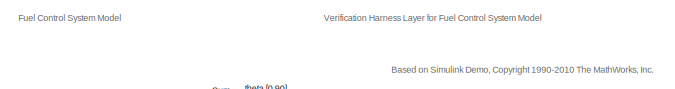
[diagram: root canvas - part 1/8, top center region]
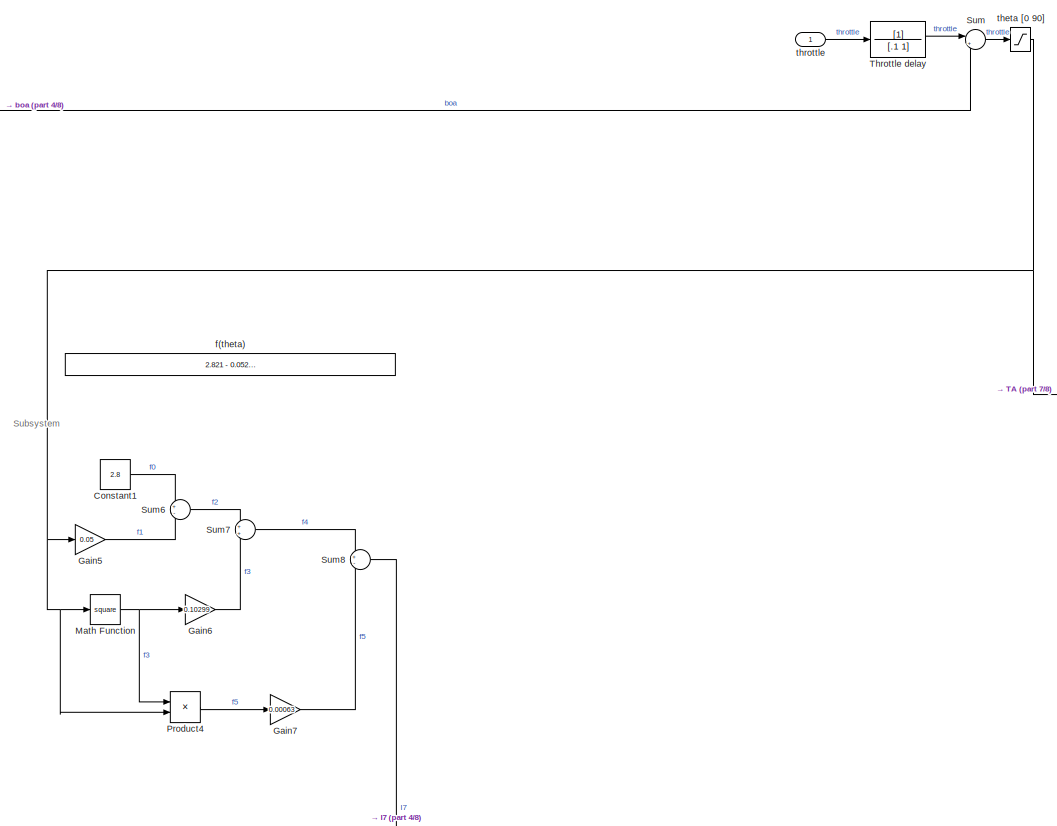
[diagram: root canvas - part 2/8, top left region]
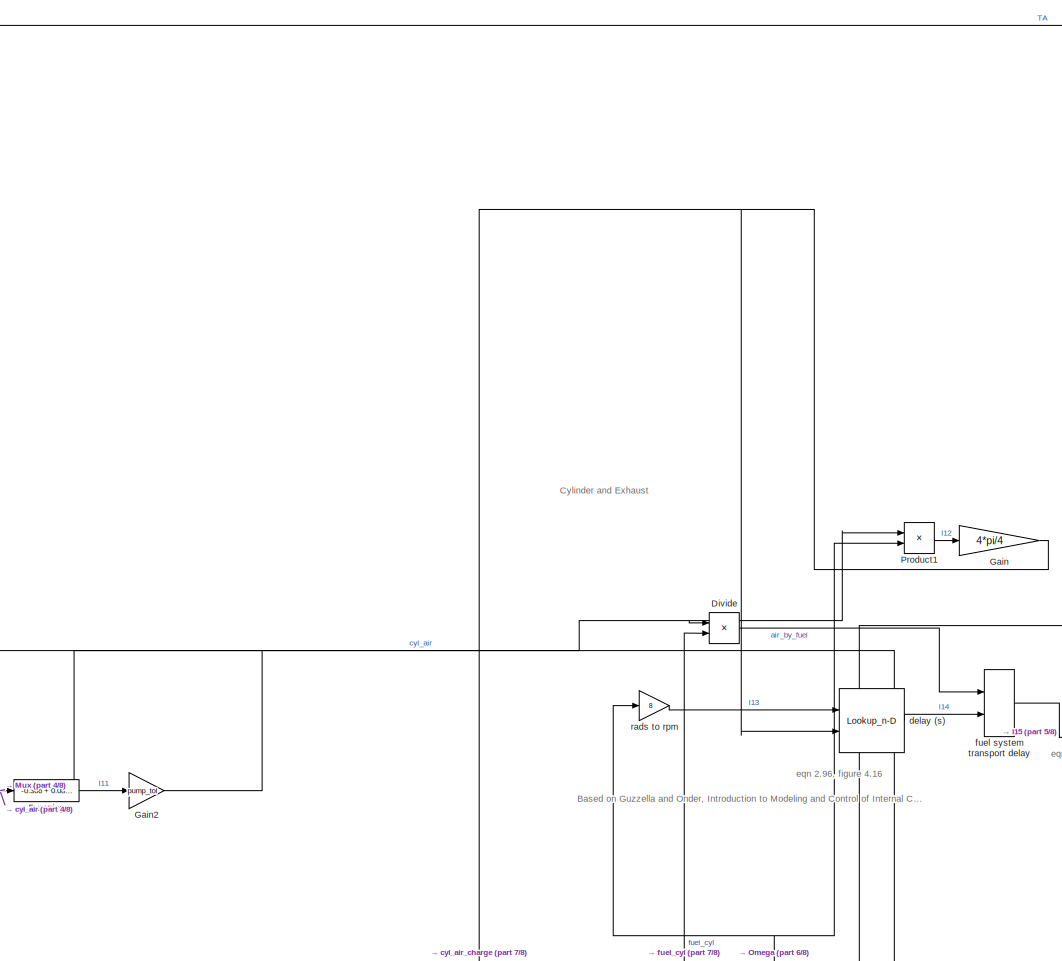
[diagram: root canvas - part 3/8, top center region]
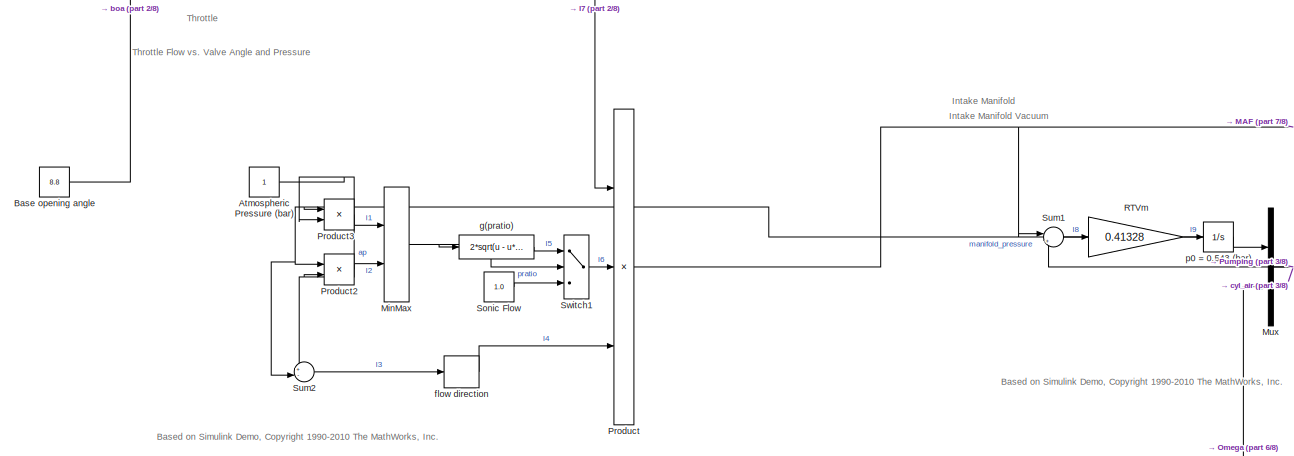
[diagram: root canvas - part 4/8, middle left region]
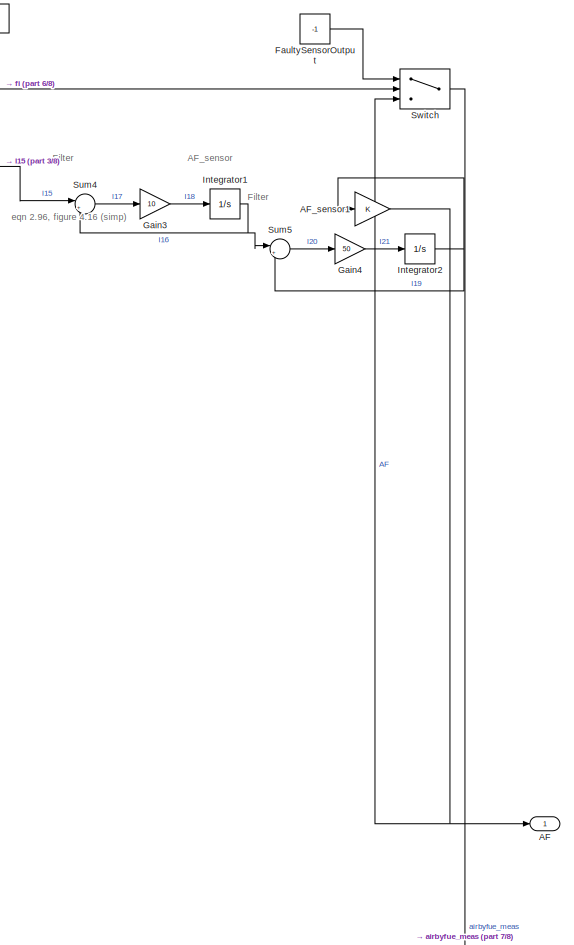
[diagram: root canvas - part 5/8, middle right region]
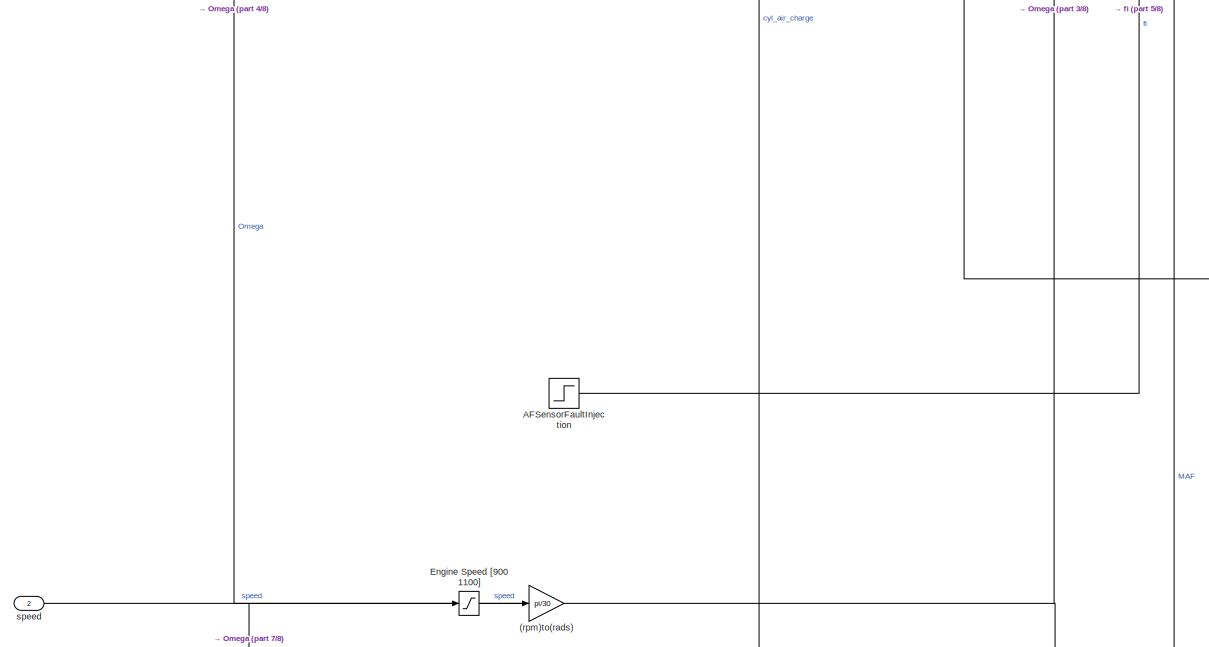
[diagram: root canvas - part 6/8, central region]
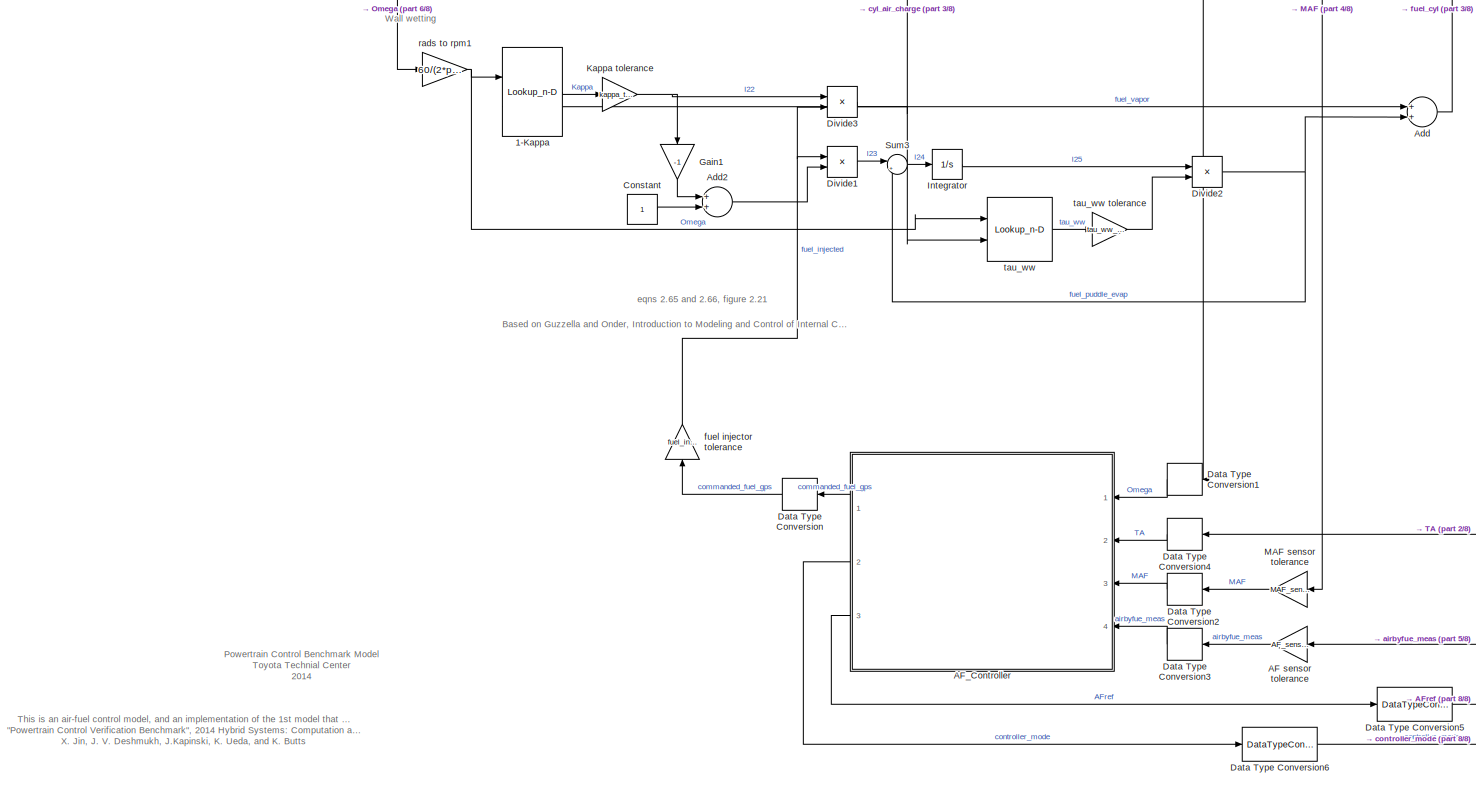
[diagram: root canvas - part 7/8, bottom center region]
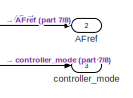
[diagram: root canvas - part 8/8, bottom right region]
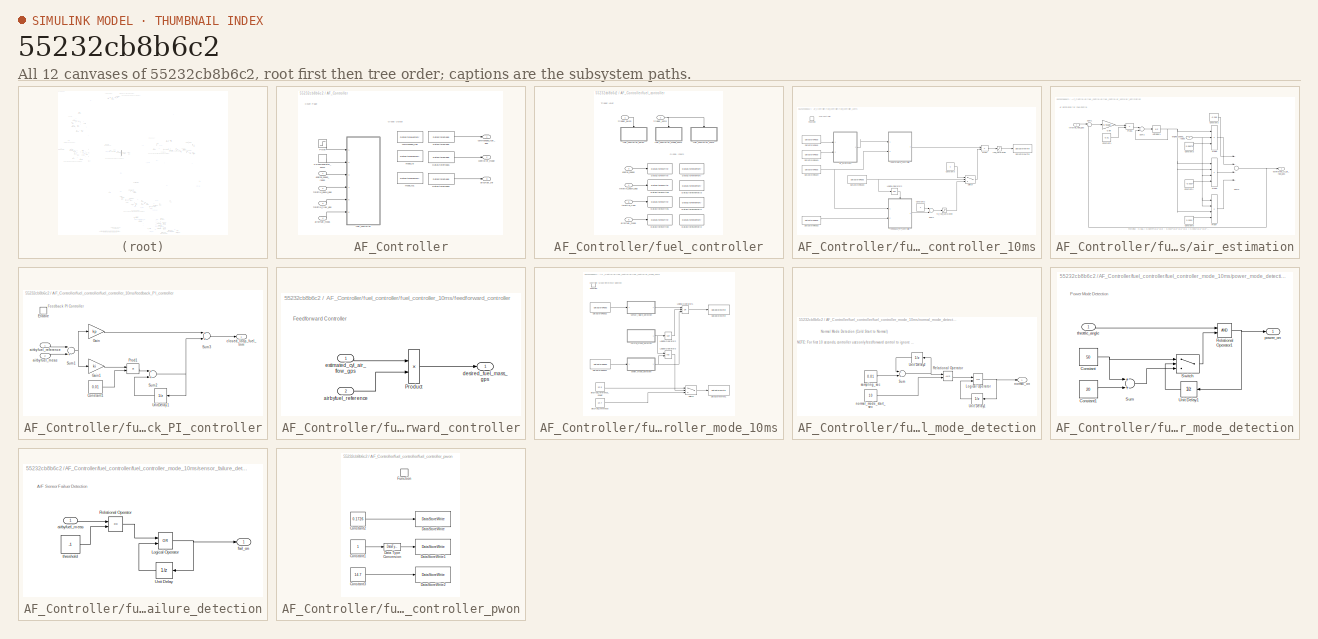
[diagram: thumbnail index - all 12 canvases of the model, root first then tree order]
MODEL slx_55232cb8b6c2
KIND model
CONFIG AbsTol = auto
CONFIG EnableMultiTasking = off
CONFIG FixedStep = auto
CONFIG MaxStep = .01
CONFIG MinStep = auto
CONFIG RelTol = 1e-3
CONFIG SampleTimeConstraint = Unconstrained
CONFIG Solver = ode15s
CONFIG SolverName = ode15s
CONFIG StartTime = 0.0
CONFIG StopTime = tspan(end)
WORKSPACE source: external: MAT-File  (data not in archive)
BLOCK [Gain] (rpm)to(rads)
  Gain = pi/30
  OutDataTypeStr = Inherit: Inherit via internal rule
  ParamDataTypeStr = Inherit: Inherit via internal rule
  SaturateOnIntegerOverflow = off
BLOCK [Lookup_n-D] 1-Kappa
  BreakpointsForDimension1 = [1000,1500,2000,2500,3000]
  BreakpointsForDimension2 = [.1,.2,.3,.4]
  DiagnosticForOutOfRangeInput = Warning
  Ports = [2, 1]
  RndMeth = Simplest
  Table = reshape([0.8,.7,.7,.8,.9,.7,.66,.65,.73,.85,.66,.66,.63,.66,.8,.6,.6,.6,.6,.7],5,4)
  UseLastTableValue = on
BLOCK [Outport] AF
  IconDisplay = Port number
BLOCK [Gain] AF sensor tolerance
  Gain = AF_sensor_tol
  OutDataTypeStr = Inherit: Inherit via internal rule
  ParamDataTypeStr = Inherit: Inherit via internal rule
  SaturateOnIntegerOverflow = off
BLOCK [Step] AFSensorFaultInjection
  AttributesFormatString = 1: Failure\n0: Normal
  SampleTime = 0
  Time = fault_time
BLOCK [SubSystem] AF_Controller
  Ports = [4, 3]
  RequestExecContextInheritance = off
  TreatAsAtomicUnit = on
  Variant = off
BLOCK [DataStoreRead] AF_Controller/DataStoreRead
  AttributesFormatString = Priority = %<Priority>
  DataStoreName = commanded_fuel
  Ports = [0, 1]
  Priority = 2
  SampleTime = 0.01
BLOCK [DataStoreRead] AF_Controller/DataStoreRead1
  AttributesFormatString = Priority = %<Priority>
  DataStoreName = controller_mode
  Ports = [0, 1]
  Priority = 2
  SampleTime = 0.01
BLOCK [DataStoreRead] AF_Controller/DataStoreRead2
  AttributesFormatString = Priority = %<Priority>
  DataStoreName = airbyfuel_ref
  Ports = [0, 1]
  Priority = 2
  SampleTime = 0.01
BLOCK [DiscretePulseGenerator] AF_Controller/PulseGenerator_10ms
  Period = 0.01
  PhaseDelay = 0.01
  Ports = [0, 1]
  PulseType = Time based
  PulseWidth = 50
BLOCK [Step] AF_Controller/Pwon
  SampleTime = 0
  Time = 0.001
BLOCK [Inport] AF_Controller/airbyfuel_meas
  IconDisplay = Port number
  Port = 4
  SamplingMode = Sample based
  SignalType = real
BLOCK [Outport] AF_Controller/airbyfuel_ref
  IconDisplay = Port number
  Port = 3
  SamplingMode = Sample based
  SignalType = real
BLOCK [DataStoreMemory] AF_Controller/commanded_fuel
  AttributesFormatString = commanded_fuel
  DataStoreName = commanded_fuel
  InitialValue = 0.1726
  OutDataTypeStr = single
  ShowAdditionalParam = off
  SignalType = real
BLOCK [Outport] AF_Controller/commanded_fuel_gps
  IconDisplay = Port number
  SamplingMode = Sample based
  SignalType = real
BLOCK [Outport] AF_Controller/controller_mode
  IconDisplay = Port number
  Port = 2
  SamplingMode = Sample based
  SignalType = real
BLOCK [Inport] AF_Controller/engine_speed_radps
  IconDisplay = Port number
  SamplingMode = Sample based
  SignalType = real
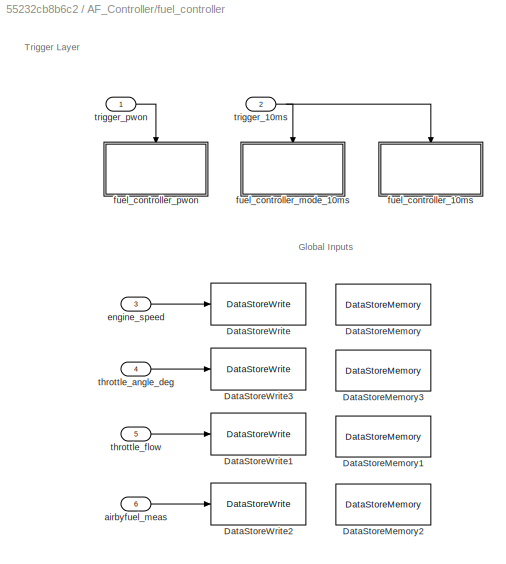
BLOCK [SubSystem] AF_Controller/fuel_controller
  AttributesFormatString = Priority = %<Priority>
  Ports = [6]
  Priority = 1
  RequestExecContextInheritance = off
  TreatAsAtomicUnit = on
  Variant = off
BLOCK [DataStoreMemory] AF_Controller/fuel_controller/DataStoreMemory
  AttributesFormatString = engine speed
  DataStoreName = engine_speed
  OutDataTypeStr = single
  ShowAdditionalParam = off
  SignalType = real
BLOCK [DataStoreMemory] AF_Controller/fuel_controller/DataStoreMemory1
  AttributesFormatString = throttle flow
  DataStoreName = throttle_flow
  OutDataTypeStr = single
  ShowAdditionalParam = off
  SignalType = real
BLOCK [DataStoreMemory] AF_Controller/fuel_controller/DataStoreMemory2
  AttributesFormatString = lambda_meas
  DataStoreName = airbyfuel_meas
  OutDataTypeStr = single
  ShowAdditionalParam = off
  SignalType = real
BLOCK [DataStoreMemory] AF_Controller/fuel_controller/DataStoreMemory3
  AttributesFormatString = throttle flow
  DataStoreName = throttle_angle
  OutDataTypeStr = single
  ShowAdditionalParam = off
  SignalType = real
BLOCK [DataStoreWrite] AF_Controller/fuel_controller/DataStoreWrite
  AttributesFormatString = Priority = %<Priority>
  DataStoreName = engine_speed
  Ports = [1]
  Priority = 1
BLOCK [DataStoreWrite] AF_Controller/fuel_controller/DataStoreWrite1
  AttributesFormatString = Priority = %<Priority>
  DataStoreName = throttle_flow
  Ports = [1]
  Priority = 1
BLOCK [DataStoreWrite] AF_Controller/fuel_controller/DataStoreWrite2
  AttributesFormatString = Priority = %<Priority>
  DataStoreName = airbyfuel_meas
  Ports = [1]
  Priority = 1
BLOCK [DataStoreWrite] AF_Controller/fuel_controller/DataStoreWrite3
  AttributesFormatString = Priority = %<Priority>
  DataStoreName = throttle_angle
  Ports = [1]
  Priority = 1
BLOCK [Inport] AF_Controller/fuel_controller/airbyfuel_meas
  IconDisplay = Port number
  Port = 6
  SamplingMode = Sample based
  SignalType = real
BLOCK [Inport] AF_Controller/fuel_controller/engine_speed
  IconDisplay = Port number
  Port = 3
  SamplingMode = Sample based
  SignalType = real
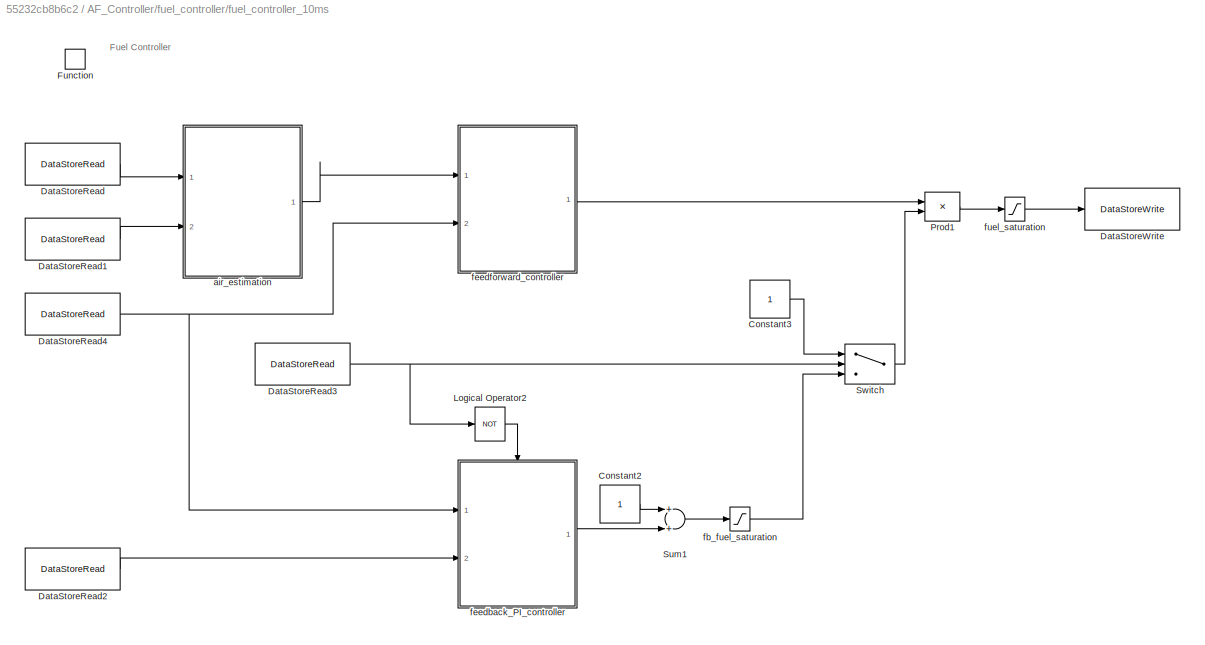
BLOCK [SubSystem] AF_Controller/fuel_controller/fuel_controller_10ms
  AttributesFormatString = Priority = %<Priority>
  Ports = [0, 0, 0, 1]
  Priority = 30
  RequestExecContextInheritance = off
  TreatAsAtomicUnit = on
  Variant = off
BLOCK [Constant] AF_Controller/fuel_controller/fuel_controller_10ms/Constant2
  OutDataTypeStr = single
BLOCK [Constant] AF_Controller/fuel_controller/fuel_controller_10ms/Constant3
  OutDataTypeStr = single
BLOCK [DataStoreRead] AF_Controller/fuel_controller/fuel_controller_10ms/DataStoreRead
  DataStoreName = throttle_flow
  Ports = [0, 1]
BLOCK [DataStoreRead] AF_Controller/fuel_controller/fuel_controller_10ms/DataStoreRead1
  DataStoreName = engine_speed
  Ports = [0, 1]
BLOCK [DataStoreRead] AF_Controller/fuel_controller/fuel_controller_10ms/DataStoreRead2
  DataStoreName = airbyfuel_meas
  Ports = [0, 1]
BLOCK [DataStoreRead] AF_Controller/fuel_controller/fuel_controller_10ms/DataStoreRead3
  AttributesFormatString = 1: Feedforward\n0: Feedforward + Feedback
  DataStoreName = controller_mode
  Ports = [0, 1]
BLOCK [DataStoreRead] AF_Controller/fuel_controller/fuel_controller_10ms/DataStoreRead4
  DataStoreName = airbyfuel_ref
  Ports = [0, 1]
BLOCK [DataStoreWrite] AF_Controller/fuel_controller/fuel_controller_10ms/DataStoreWrite
  DataStoreName = commanded_fuel
  Ports = [1]
BLOCK [TriggerPort] AF_Controller/fuel_controller/fuel_controller_10ms/Function
  Ports = []
  StatesWhenEnabling = held
  VariantControl = Variant
BLOCK [Logic] AF_Controller/fuel_controller/fuel_controller_10ms/Logical Operator2
  AllPortsSameDT = off
  Operator = NOT
  OutDataTypeStr = boolean
  Ports = [1, 1]
BLOCK [Product] AF_Controller/fuel_controller/fuel_controller_10ms/Prod1
  InputSameDT = off
  OutDataTypeStr = Inherit: Inherit via back propagation
  Ports = [2, 1]
  RndMeth = Simplest
  SaturateOnIntegerOverflow = off
BLOCK [Sum] AF_Controller/fuel_controller/fuel_controller_10ms/Sum1
  OutDataTypeStr = Inherit: Inherit via back propagation
  Ports = [2, 1]
  RndMeth = Simplest
  SaturateOnIntegerOverflow = off
BLOCK [Switch] AF_Controller/fuel_controller/fuel_controller_10ms/Switch
  Criteria = u2 ~= 0
  InputSameDT = off
  SaturateOnIntegerOverflow = off
  Threshold = 0.5
BLOCK [SubSystem] AF_Controller/fuel_controller/fuel_controller_10ms/air_estimation
  Ports = [2, 1]
  RequestExecContextInheritance = off
  TreatAsAtomicUnit = on
  Variant = off
BLOCK [Constant] AF_Controller/fuel_controller/fuel_controller_10ms/air_estimation/Constant1
  AttributesFormatString = Sample Time (s)
  OutDataTypeStr = single
  SampleTime = -1
  UserDataPersistent = on
  Value = 0.01
BLOCK [Constant] AF_Controller/fuel_controller/fuel_controller_10ms/air_estimation/Constant2
  OutDataTypeStr = single
  SampleTime = -1
  UserDataPersistent = on
  Value = -0.366
BLOCK [Constant] AF_Controller/fuel_controller/fuel_controller_10ms/air_estimation/Constant3
  OutDataTypeStr = single
  SampleTime = -1
  UserDataPersistent = on
  Value = 0.08979
BLOCK [Constant] AF_Controller/fuel_controller/fuel_controller_10ms/air_estimation/Constant4
  OutDataTypeStr = single
  SampleTime = -1
  UserDataPersistent = on
  Value = -0.0337
BLOCK [Constant] AF_Controller/fuel_controller/fuel_controller_10ms/air_estimation/Constant5
  OutDataTypeStr = single
  SampleTime = -1
  UserDataPersistent = on
  Value = 0.0001
BLOCK [Gain] AF_Controller/fuel_controller/fuel_controller_10ms/air_estimation/Gain
  AttributesFormatString = RT/Vm
  Gain = 0.41328
  OutDataTypeStr = Inherit: Inherit via back propagation
  ParamDataTypeStr = single
  RndMeth = Simplest
  UserDataPersistent = on
BLOCK [Product] AF_Controller/fuel_controller/fuel_controller_10ms/air_estimation/Prod1
  InputSameDT = off
  OutDataTypeStr = Inherit: Inherit via back propagation
  Ports = [2, 1]
  RndMeth = Simplest
  SaturateOnIntegerOverflow = off
BLOCK [Product] AF_Controller/fuel_controller/fuel_controller_10ms/air_estimation/Prod2
  InputSameDT = off
  Inputs = 3
  OutDataTypeStr = Inherit: Inherit via back propagation
  Ports = [3, 1]
  RndMeth = Simplest
  SaturateOnIntegerOverflow = off
BLOCK [Product] AF_Controller/fuel_controller/fuel_controller_10ms/air_estimation/Prod3
  InputSameDT = off
  Inputs = 4
  OutDataTypeStr = Inherit: Inherit via back propagation
  Ports = [4, 1]
  RndMeth = Simplest
  SaturateOnIntegerOverflow = off
BLOCK [Product] AF_Controller/fuel_controller/fuel_controller_10ms/air_estimation/Prod4
  InputSameDT = off
  Inputs = 4
  OutDataTypeStr = Inherit: Inherit via back propagation
  Ports = [4, 1]
  RndMeth = Simplest
  SaturateOnIntegerOverflow = off
BLOCK [Sum] AF_Controller/fuel_controller/fuel_controller_10ms/air_estimation/Sum1
  IconShape = round
  Inputs = |+-
  OutDataTypeStr = Inherit: Inherit via back propagation
  Ports = [2, 1]
  RndMeth = Simplest
  SaturateOnIntegerOverflow = off
BLOCK [Sum] AF_Controller/fuel_controller/fuel_controller_10ms/air_estimation/Sum2
  OutDataTypeStr = Inherit: Inherit via back propagation
  Ports = [2, 1]
  RndMeth = Simplest
  SaturateOnIntegerOverflow = off
BLOCK [Sum] AF_Controller/fuel_controller/fuel_controller_10ms/air_estimation/Sum3
  Inputs = ++++
  OutDataTypeStr = Inherit: Inherit via back propagation
  Ports = [4, 1]
  RndMeth = Simplest
  SaturateOnIntegerOverflow = off
BLOCK [UnitDelay] AF_Controller/fuel_controller/fuel_controller_10ms/air_estimation/UnitDelay1
  AttributesFormatString = p0 = %<InitialCondition> (bar)
  InitialCondition = 0.982
  SampleTime = -1
  UserDataPersistent = on
BLOCK [Inport] AF_Controller/fuel_controller/fuel_controller_10ms/air_estimation/engine_speed_radps
  IconDisplay = Port number
  Port = 2
  SamplingMode = Sample based
  SignalType = real
BLOCK [Outport] AF_Controller/fuel_controller/fuel_controller_10ms/air_estimation/estimated_cyl_air_flow_gps
  IconDisplay = Port number
  SamplingMode = Sample based
  SignalType = real
BLOCK [Inport] AF_Controller/fuel_controller/fuel_controller_10ms/air_estimation/throttle_flow_gps
  IconDisplay = Port number
  SamplingMode = Sample based
  SignalType = real
BLOCK [Saturate] AF_Controller/fuel_controller/fuel_controller_10ms/fb_fuel_saturation
  AttributesFormatString = y >= 0
  InputPortMap = u0
  LowerLimit = 0
  Ports = [1, 1]
  RndMeth = Round
  UpperLimit = inf
BLOCK [SubSystem] AF_Controller/fuel_controller/fuel_controller_10ms/feedback_PI_controller
  Ports = [2, 1, 1]
  RequestExecContextInheritance = off
  TreatAsAtomicUnit = on
  Variant = off
BLOCK [Constant] AF_Controller/fuel_controller/fuel_controller_10ms/feedback_PI_controller/Constant1
  AttributesFormatString = Sample Time [s]
  OutDataTypeStr = single
  SampleTime = -1
  UserDataPersistent = on
  Value = 0.01
BLOCK [EnablePort] AF_Controller/fuel_controller/fuel_controller_10ms/feedback_PI_controller/Enable
  Ports = []
BLOCK [Gain] AF_Controller/fuel_controller/fuel_controller_10ms/feedback_PI_controller/Gain
  AttributesFormatString = Proportional Gain
  Gain = kp
  OutDataTypeStr = Inherit: Inherit via back propagation
  ParamDataTypeStr = single
  RndMeth = Simplest
  UserDataPersistent = on
BLOCK [Gain] AF_Controller/fuel_controller/fuel_controller_10ms/feedback_PI_controller/Gain1
  AttributesFormatString = Integral Gain
  Gain = ki
  OutDataTypeStr = Inherit: Inherit via back propagation
  ParamDataTypeStr = single
  RndMeth = Simplest
  UserDataPersistent = on
BLOCK [Product] AF_Controller/fuel_controller/fuel_controller_10ms/feedback_PI_controller/Prod1
  InputSameDT = off
  OutDataTypeStr = Inherit: Inherit via back propagation
  Ports = [2, 1]
  RndMeth = Simplest
  SaturateOnIntegerOverflow = off
BLOCK [Sum] AF_Controller/fuel_controller/fuel_controller_10ms/feedback_PI_controller/Sum1
  Inputs = -+
  OutDataTypeStr = Inherit: Inherit via back propagation
  Ports = [2, 1]
  RndMeth = Simplest
  SaturateOnIntegerOverflow = off
BLOCK [Sum] AF_Controller/fuel_controller/fuel_controller_10ms/feedback_PI_controller/Sum2
  OutDataTypeStr = Inherit: Inherit via back propagation
  Ports = [2, 1]
  RndMeth = Simplest
  SaturateOnIntegerOverflow = off
BLOCK [Sum] AF_Controller/fuel_controller/fuel_controller_10ms/feedback_PI_controller/Sum3
  OutDataTypeStr = Inherit: Inherit via back propagation
  Ports = [2, 1]
  RndMeth = Simplest
  SaturateOnIntegerOverflow = off
BLOCK [UnitDelay] AF_Controller/fuel_controller/fuel_controller_10ms/feedback_PI_controller/UnitDelay1
  AttributesFormatString = Initial Value = 0
  SampleTime = -1
  UserDataPersistent = on
BLOCK [Inport] AF_Controller/fuel_controller/fuel_controller_10ms/feedback_PI_controller/airbyfuel_meas
  IconDisplay = Port number
  Port = 2
  SamplingMode = Sample based
  SignalType = real
BLOCK [Inport] AF_Controller/fuel_controller/fuel_controller_10ms/feedback_PI_controller/airbyfuel_reference
  IconDisplay = Port number
  SamplingMode = Sample based
  SignalType = real
BLOCK [Outport] AF_Controller/fuel_controller/fuel_controller_10ms/feedback_PI_controller/closed_loop_fuel_trim
  IconDisplay = Port number
  SamplingMode = Sample based
  SignalType = real
BLOCK [SubSystem] AF_Controller/fuel_controller/fuel_controller_10ms/feedforward_controller
  Ports = [2, 1]
  RequestExecContextInheritance = off
  TreatAsAtomicUnit = on
  Variant = off
BLOCK [Product] AF_Controller/fuel_controller/fuel_controller_10ms/feedforward_controller/Product
  InputSameDT = off
  Inputs = */
  Ports = [2, 1]
  RndMeth = Simplest
BLOCK [Inport] AF_Controller/fuel_controller/fuel_controller_10ms/feedforward_controller/airbyfuel_reference
  IconDisplay = Port number
  Port = 2
  SamplingMode = Sample based
  SignalType = real
BLOCK [Outport] AF_Controller/fuel_controller/fuel_controller_10ms/feedforward_controller/desired_fuel_mass_gps
  IconDisplay = Port number
  SamplingMode = Sample based
  SignalType = real
BLOCK [Inport] AF_Controller/fuel_controller/fuel_controller_10ms/feedforward_controller/estimated_cyl_air_flow_gps
  IconDisplay = Port number
  SamplingMode = Sample based
  SignalType = real
BLOCK [Saturate] AF_Controller/fuel_controller/fuel_controller_10ms/fuel_saturation
  AttributesFormatString = 0.13 <=\ncommanded_fuel\n<= 1.66
  InputPortMap = u0
  LowerLimit = 0.13
  Ports = [1, 1]
  RndMeth = Round
  UpperLimit = 1.66
BLOCK [SubSystem] AF_Controller/fuel_controller/fuel_controller_mode_10ms
  AttributesFormatString = Priority = %<Priority>
  Ports = [0, 0, 0, 1]
  Priority = 20
  RequestExecContextInheritance = off
  TreatAsAtomicUnit = on
  Variant = off
BLOCK [DataStoreRead] AF_Controller/fuel_controller/fuel_controller_mode_10ms/DataStoreRead2
  DataStoreName = airbyfuel_meas
  Ports = [0, 1]
BLOCK [DataStoreRead] AF_Controller/fuel_controller/fuel_controller_mode_10ms/DataStoreRead4
  DataStoreName = throttle_angle
  Ports = [0, 1]
BLOCK [DataStoreWrite] AF_Controller/fuel_controller/fuel_controller_mode_10ms/DataStoreWrite
  AttributesFormatString = 1: Feedforward\n0: Feedforward + Feedback
  DataStoreName = controller_mode
  Ports = [1]
BLOCK [DataStoreWrite] AF_Controller/fuel_controller/fuel_controller_mode_10ms/DataStoreWrite1
  DataStoreName = airbyfuel_ref
  Ports = [1]
BLOCK [TriggerPort] AF_Controller/fuel_controller/fuel_controller_mode_10ms/Function
  Ports = []
  StatesWhenEnabling = held
  VariantControl = Variant
BLOCK [Logic] AF_Controller/fuel_controller/fuel_controller_mode_10ms/Logical Operator1
  AllPortsSameDT = off
  Inputs = 3
  Operator = OR
  OutDataTypeStr = boolean
  Ports = [3, 1]
BLOCK [Logic] AF_Controller/fuel_controller/fuel_controller_mode_10ms/Logical Operator2
  AllPortsSameDT = off
  Operator = NOT
  OutDataTypeStr = boolean
  Ports = [1, 1]
BLOCK [Logic] AF_Controller/fuel_controller/fuel_controller_mode_10ms/Logical Operator3
  AllPortsSameDT = off
  OutDataTypeStr = boolean
  Ports = [2, 1]
BLOCK [Switch] AF_Controller/fuel_controller/fuel_controller_mode_10ms/Switch
  Criteria = u2 ~= 0
  InputSameDT = off
  SaturateOnIntegerOverflow = off
BLOCK [Constant] AF_Controller/fuel_controller/fuel_controller_mode_10ms/airbyfuel_reference
  OutDataTypeStr = single
  SampleTime = -1
  UserDataPersistent = on
  Value = 14.7
BLOCK [Constant] AF_Controller/fuel_controller/fuel_controller_mode_10ms/airbyfuel_reference_power
  OutDataTypeStr = single
  SampleTime = -1
  UserDataPersistent = on
  Value = 12.5
BLOCK [SubSystem] AF_Controller/fuel_controller/fuel_controller_mode_10ms/normal_mode_detection
  AttributesFormatString = 0: Feedforward\n1: Feedforward + Feedback
  Ports = [0, 1]
  RequestExecContextInheritance = off
  TreatAsAtomicUnit = on
  Variant = off
BLOCK [Logic] AF_Controller/fuel_controller/fuel_controller_mode_10ms/normal_mode_detection/Logical Operator
  Operator = OR
  OutDataTypeStr = boolean
  Ports = [2, 1]
BLOCK [RelationalOperator] AF_Controller/fuel_controller/fuel_controller_mode_10ms/normal_mode_detection/Relational Operator
  InputSameDT = off
  OutDataTypeStr = boolean
  Ports = [2, 1]
BLOCK [Sum] AF_Controller/fuel_controller/fuel_controller_mode_10ms/normal_mode_detection/Sum
  InputSameDT = off
  OutDataTypeStr = Inherit: Inherit via internal rule
  Ports = [2, 1]
  SaturateOnIntegerOverflow = off
BLOCK [UnitDelay] AF_Controller/fuel_controller/fuel_controller_mode_10ms/normal_mode_detection/Unit Delay1
  AttributesFormatString = Initial Value = 0
  InputProcessing = Elements as channels (sample based)
  SampleTime = -1
BLOCK [UnitDelay] AF_Controller/fuel_controller/fuel_controller_mode_10ms/normal_mode_detection/Unit Delay2
  AttributesFormatString = Initial Value = 0
  InputProcessing = Elements as channels (sample based)
  SampleTime = -1
BLOCK [Constant] AF_Controller/fuel_controller/fuel_controller_mode_10ms/normal_mode_detection/normal_mode_start_sec
  AttributesFormatString = Normal Mode Start Time (s)
  OutDataTypeStr = single
  SampleTime = -1
  UserDataPersistent = on
  Value = 10
BLOCK [Outport] AF_Controller/fuel_controller/fuel_controller_mode_10ms/normal_mode_detection/normal_on
  IconDisplay = Port number
BLOCK [Constant] AF_Controller/fuel_controller/fuel_controller_mode_10ms/normal_mode_detection/sampling_sec
  AttributesFormatString = Sample Time (s)
  OutDataTypeStr = single
  SampleTime = -1
  UserDataPersistent = on
  Value = 0.01
BLOCK [SubSystem] AF_Controller/fuel_controller/fuel_controller_mode_10ms/power_mode_detection
  AttributesFormatString = 1: Feedforward\n0: Feedforward + Feedback
  Ports = [1, 1]
  RequestExecContextInheritance = off
  TreatAsAtomicUnit = on
  Variant = off
BLOCK [Constant] AF_Controller/fuel_controller/fuel_controller_mode_10ms/power_mode_detection/Constant
  AttributesFormatString = Base
  OutDataTypeStr = single
  Value = 50
BLOCK [Constant] AF_Controller/fuel_controller/fuel_controller_mode_10ms/power_mode_detection/Constant1
  AttributesFormatString = Hysteresis
  OutDataTypeStr = single
  Value = 20
BLOCK [RelationalOperator] AF_Controller/fuel_controller/fuel_controller_mode_10ms/power_mode_detection/Relational Operator1
  InputSameDT = off
  OutDataTypeStr = boolean
  Ports = [2, 1]
BLOCK [Sum] AF_Controller/fuel_controller/fuel_controller_mode_10ms/power_mode_detection/Sum
  InputSameDT = off
  OutDataTypeStr = Inherit: Inherit via internal rule
  Ports = [2, 1]
  SaturateOnIntegerOverflow = off
BLOCK [Switch] AF_Controller/fuel_controller/fuel_controller_mode_10ms/power_mode_detection/Switch
  Criteria = u2 ~= 0
  InputSameDT = off
  SaturateOnIntegerOverflow = off
BLOCK [UnitDelay] AF_Controller/fuel_controller/fuel_controller_mode_10ms/power_mode_detection/Unit Delay1
  AttributesFormatString = Initial Value = 0
  InputProcessing = Elements as channels (sample based)
  SampleTime = -1
BLOCK [Outport] AF_Controller/fuel_controller/fuel_controller_mode_10ms/power_mode_detection/power_on
  IconDisplay = Port number
BLOCK [Inport] AF_Controller/fuel_controller/fuel_controller_mode_10ms/power_mode_detection/throttle_angle
  IconDisplay = Port number
BLOCK [SubSystem] AF_Controller/fuel_controller/fuel_controller_mode_10ms/sensor_failure_detection
  AttributesFormatString = 1: Feedforward\n0: Feedforward + Feedback
  Ports = [1, 1]
  RequestExecContextInheritance = off
  TreatAsAtomicUnit = on
  Variant = off
BLOCK [Logic] AF_Controller/fuel_controller/fuel_controller_mode_10ms/sensor_failure_detection/Logical Operator
  Operator = OR
  OutDataTypeStr = boolean
  Ports = [2, 1]
BLOCK [RelationalOperator] AF_Controller/fuel_controller/fuel_controller_mode_10ms/sensor_failure_detection/Relational Operator
  InputSameDT = off
  Operator = <=
  OutDataTypeStr = boolean
  Ports = [2, 1]
BLOCK [UnitDelay] AF_Controller/fuel_controller/fuel_controller_mode_10ms/sensor_failure_detection/Unit Delay
  AttributesFormatString = Initial Value = 0
  InputProcessing = Elements as channels (sample based)
  SampleTime = -1
BLOCK [Inport] AF_Controller/fuel_controller/fuel_controller_mode_10ms/sensor_failure_detection/airbyfuel_meas
  IconDisplay = Port number
BLOCK [Outport] AF_Controller/fuel_controller/fuel_controller_mode_10ms/sensor_failure_detection/fail_on
  IconDisplay = Port number
BLOCK [Constant] AF_Controller/fuel_controller/fuel_controller_mode_10ms/sensor_failure_detection/threshold
  OutDataTypeStr = single
  Value = -1
BLOCK [SubSystem] AF_Controller/fuel_controller/fuel_controller_pwon
  AttributesFormatString = Priority = %<Priority>
  Ports = [0, 0, 0, 1]
  Priority = 10
  RequestExecContextInheritance = off
  TreatAsAtomicUnit = on
  Variant = off
BLOCK [Constant] AF_Controller/fuel_controller/fuel_controller_pwon/Constant1
  OutDataTypeStr = single
  SampleTime = -1
  UserDataPersistent = on
BLOCK [Constant] AF_Controller/fuel_controller/fuel_controller_pwon/Constant2
  OutDataTypeStr = single
  SampleTime = -1
  UserDataPersistent = on
  Value = 0.1726
BLOCK [Constant] AF_Controller/fuel_controller/fuel_controller_pwon/Constant3
  OutDataTypeStr = single
  SampleTime = -1
  UserDataPersistent = on
  Value = 14.7
BLOCK [DataTypeConversion] AF_Controller/fuel_controller/fuel_controller_pwon/Data Type Conversion
  OutDataTypeStr = boolean
  RndMeth = Floor
  SaturateOnIntegerOverflow = off
BLOCK [DataStoreWrite] AF_Controller/fuel_controller/fuel_controller_pwon/DataStoreWrite
  DataStoreName = commanded_fuel
  Ports = [1]
BLOCK [DataStoreWrite] AF_Controller/fuel_controller/fuel_controller_pwon/DataStoreWrite1
  DataStoreName = controller_mode
  Ports = [1]
BLOCK [DataStoreWrite] AF_Controller/fuel_controller/fuel_controller_pwon/DataStoreWrite2
  DataStoreName = airbyfuel_ref
  Ports = [1]
BLOCK [TriggerPort] AF_Controller/fuel_controller/fuel_controller_pwon/Function
  Ports = []
  StatesWhenEnabling = held
  VariantControl = Variant
BLOCK [Inport] AF_Controller/fuel_controller/throttle_angle_deg
  IconDisplay = Port number
  Port = 4
  SamplingMode = Sample based
  SignalType = real
BLOCK [Inport] AF_Controller/fuel_controller/throttle_flow
  IconDisplay = Port number
  Port = 5
  SamplingMode = Sample based
  SignalType = real
BLOCK [Inport] AF_Controller/fuel_controller/trigger_10ms
  IconDisplay = Port number
  Port = 2
  SamplingMode = Sample based
  SignalType = real
BLOCK [Inport] AF_Controller/fuel_controller/trigger_pwon
  IconDisplay = Port number
  SamplingMode = Sample based
  SignalType = real
BLOCK [DataStoreMemory] AF_Controller/mode_fb
  AttributesFormatString = controller_mode
  DataStoreName = controller_mode
  OutDataTypeStr = boolean
  ShowAdditionalParam = off
  SignalType = real
BLOCK [DataStoreMemory] AF_Controller/mode_fb1
  AttributesFormatString = airbyfuel_reference
  DataStoreName = airbyfuel_ref
  OutDataTypeStr = single
  ShowAdditionalParam = off
  SignalType = real
BLOCK [Inport] AF_Controller/throttle_angle_deg
  IconDisplay = Port number
  Port = 2
  SamplingMode = Sample based
  SignalType = real
BLOCK [Inport] AF_Controller/throttle_flow_gps
  IconDisplay = Port number
  Port = 3
  SamplingMode = Sample based
  SignalType = real
BLOCK [Gain] AF_sensor1
  OutDataTypeStr = double
  ParamDataTypeStr = Inherit: Inherit via internal rule
  SaturateOnIntegerOverflow = off
BLOCK [Outport] AFref
  IconDisplay = Port number
  Port = 2
BLOCK [Sum] Add
  InputSameDT = off
  OutDataTypeStr = Inherit: Inherit via internal rule
  Ports = [2, 1]
  SaturateOnIntegerOverflow = off
BLOCK [Sum] Add2
  InputSameDT = off
  OutDataTypeStr = Inherit: Inherit via internal rule
  Ports = [2, 1]
  SaturateOnIntegerOverflow = off
BLOCK [Constant] Atmospheric Pressure (bar)
BLOCK [Constant] Base opening angle
  Value = 8.8
BLOCK [Constant] Constant
BLOCK [Constant] Constant1
  Value = 2.8
BLOCK [DataTypeConversion] Data Type Conversion
  OutDataTypeStr = double
  RndMeth = Floor
  SaturateOnIntegerOverflow = off
BLOCK [DataTypeConversion] Data Type Conversion1
  OutDataTypeStr = single
  RndMeth = Floor
  SaturateOnIntegerOverflow = off
BLOCK [DataTypeConversion] Data Type Conversion2
  OutDataTypeStr = single
  RndMeth = Floor
  SaturateOnIntegerOverflow = off
BLOCK [DataTypeConversion] Data Type Conversion3
  OutDataTypeStr = single
  RndMeth = Floor
  SaturateOnIntegerOverflow = off
BLOCK [DataTypeConversion] Data Type Conversion4
  OutDataTypeStr = single
  RndMeth = Floor
  SaturateOnIntegerOverflow = off
BLOCK [DataTypeConversion] Data Type Conversion5
  OutDataTypeStr = double
  RndMeth = Floor
  SaturateOnIntegerOverflow = off
BLOCK [DataTypeConversion] Data Type Conversion6
  OutDataTypeStr = double
  RndMeth = Floor
  SaturateOnIntegerOverflow = off
BLOCK [Product] Divide
  InputSameDT = off
  Inputs = */
  OutDataTypeStr = Inherit: Inherit via internal rule
  Ports = [2, 1]
  RndMeth = Floor
  SaturateOnIntegerOverflow = off
BLOCK [Product] Divide1
  InputSameDT = off
  Inputs = **
  OutDataTypeStr = Inherit: Inherit via internal rule
  Ports = [2, 1]
  RndMeth = Floor
  SaturateOnIntegerOverflow = off
BLOCK [Product] Divide2
  InputSameDT = off
  Inputs = */
  OutDataTypeStr = Inherit: Inherit via internal rule
  Ports = [2, 1]
  RndMeth = Floor
  SaturateOnIntegerOverflow = off
BLOCK [Product] Divide3
  InputSameDT = off
  Inputs = **
  OutDataTypeStr = Inherit: Inherit via internal rule
  Ports = [2, 1]
  RndMeth = Floor
  SaturateOnIntegerOverflow = off
BLOCK [Saturate] Engine Speed [900 1100]
  InputPortMap = u0
  LowerLimit = 900
  Ports = [1, 1]
  UpperLimit = 3100
BLOCK [Constant] FaultySensorOutput
  Value = -1
BLOCK [Gain] Gain
  Gain = 4*pi/4
  OutDataTypeStr = Inherit: Inherit via internal rule
  ParamDataTypeStr = Inherit: Inherit via internal rule
  SaturateOnIntegerOverflow = off
BLOCK [Gain] Gain1
  Gain = -1
  OutDataTypeStr = Inherit: Inherit via internal rule
  ParamDataTypeStr = Inherit: Inherit via internal rule
  SaturateOnIntegerOverflow = off
BLOCK [Gain] Gain2
  AttributesFormatString = pumping tolerance [0.9 1.1]
  Gain = pump_tol
  OutDataTypeStr = Inherit: Inherit via back propagation
  ParamDataTypeStr = single
  RndMeth = Simplest
  UserDataPersistent = on
BLOCK [Gain] Gain3
  Gain = 10
  OutDataTypeStr = Inherit: Inherit via internal rule
  ParamDataTypeStr = Inherit: Inherit via internal rule
  SaturateOnIntegerOverflow = off
BLOCK [Gain] Gain4
  Gain = 50
  OutDataTypeStr = Inherit: Inherit via internal rule
  ParamDataTypeStr = Inherit: Inherit via internal rule
  SaturateOnIntegerOverflow = off
BLOCK [Gain] Gain5
  Gain = 0.05
  OutDataTypeStr = Inherit: Inherit via internal rule
  ParamDataTypeStr = Inherit: Inherit via internal rule
  SaturateOnIntegerOverflow = off
BLOCK [Gain] Gain6
  Gain = 0.10299
  OutDataTypeStr = Inherit: Inherit via internal rule
  ParamDataTypeStr = Inherit: Inherit via internal rule
  SaturateOnIntegerOverflow = off
BLOCK [Gain] Gain7
  Gain = 0.00063
  OutDataTypeStr = Inherit: Inherit via internal rule
  ParamDataTypeStr = Inherit: Inherit via internal rule
  SaturateOnIntegerOverflow = off
BLOCK [Integrator] Integrator
  InitialCondition = .0112
  Ports = [1, 1]
BLOCK [Integrator] Integrator1
  InitialCondition = 14.7
  Ports = [1, 1]
BLOCK [Integrator] Integrator2
  InitialCondition = 14.7
  Ports = [1, 1]
BLOCK [Gain] Kappa tolerance
  Gain = kappa_tol
  OutDataTypeStr = Inherit: Inherit via internal rule
  ParamDataTypeStr = Inherit: Inherit via internal rule
  SaturateOnIntegerOverflow = off
BLOCK [Gain] MAF sensor tolerance
  Gain = MAF_sensor_tol
  OutDataTypeStr = Inherit: Inherit via internal rule
  ParamDataTypeStr = Inherit: Inherit via internal rule
  SaturateOnIntegerOverflow = off
BLOCK [Math] Math Function
  Operator = square
  Ports = [1, 1]
BLOCK [MinMax] MinMax
  Inputs = 2
  Ports = [2, 1]
BLOCK [Mux] Mux
  DisplayOption = bar
  Inputs = 2
  Ports = [2, 1]
BLOCK [Product] Product
  Inputs = 3
  Ports = [3, 1]
BLOCK [Product] Product1
  InputSameDT = off
  Inputs = */
  OutDataTypeStr = Inherit: Inherit via internal rule
  Ports = [2, 1]
  SaturateOnIntegerOverflow = off
BLOCK [Product] Product2
  Inputs = /*
  Ports = [2, 1]
BLOCK [Product] Product3
  Inputs = */
  Ports = [2, 1]
BLOCK [Product] Product4
  InputSameDT = off
  OutDataTypeStr = Inherit: Inherit via internal rule
  Ports = [2, 1]
  RndMeth = Floor
  SaturateOnIntegerOverflow = off
BLOCK [Fcn] Pumping
  Expr = -0.366 + 0.08979*u[1]*u[2] - 0.0337*u[2]*u[1]*u[1] + 0.0001*u[1]*u[2]*u[2]
BLOCK [Gain] RTVm
  Gain = 0.41328
BLOCK [Constant] Sonic Flow 
  Value = 1.0
BLOCK [Sum] Sum
  IconShape = round
  InputSameDT = off
  Inputs = |++
  OutDataTypeStr = Inherit: Inherit via internal rule
  Ports = [2, 1]
  SaturateOnIntegerOverflow = off
BLOCK [Sum] Sum1
  IconShape = round
  Inputs = |+-
  Ports = [2, 1]
BLOCK [Sum] Sum2
  IconShape = round
  Inputs = +-|
  Ports = [2, 1]
BLOCK [Sum] Sum3
  IconShape = round
  InputSameDT = off
  Inputs = |+-
  OutDataTypeStr = Inherit: Inherit via internal rule
  Ports = [2, 1]
  SaturateOnIntegerOverflow = off
BLOCK [Sum] Sum4
  IconShape = round
  InputSameDT = off
  Inputs = |+-
  OutDataTypeStr = Inherit: Inherit via internal rule
  Ports = [2, 1]
  SaturateOnIntegerOverflow = off
BLOCK [Sum] Sum5
  IconShape = round
  InputSameDT = off
  Inputs = |+-
  OutDataTypeStr = Inherit: Inherit via internal rule
  Ports = [2, 1]
  SaturateOnIntegerOverflow = off
BLOCK [Sum] Sum6
  IconShape = round
  InputSameDT = off
  Inputs = +-
  OutDataTypeStr = Inherit: Inherit via internal rule
  Ports = [2, 1]
  SaturateOnIntegerOverflow = off
BLOCK [Sum] Sum7
  IconShape = round
  InputSameDT = off
  OutDataTypeStr = Inherit: Inherit via internal rule
  Ports = [2, 1]
  SaturateOnIntegerOverflow = off
BLOCK [Sum] Sum8
  IconShape = round
  InputSameDT = off
  Inputs = +-
  OutDataTypeStr = Inherit: Inherit via internal rule
  Ports = [2, 1]
  SaturateOnIntegerOverflow = off
BLOCK [Switch] Switch
  InputSameDT = off
  SaturateOnIntegerOverflow = off
  Threshold = 0.5
BLOCK [Switch] Switch1
  Threshold = 0.5
BLOCK [TransferFcn] Throttle delay
  Denominator = [.1 1]
BLOCK [Outport] controller_mode
  IconDisplay = Port number
  Port = 3
BLOCK [Lookup_n-D] delay (s)
  BreakpointsForDimension1 = [800,1000,1500,2000,3000]
  BreakpointsForDimension2 = [0.05,0.15,0.2,0.25]
  Ports = [2, 1]
  RndMeth = Simplest
  Table = reshape([0.8,0.6,0.4,0.3,0.2,0.4,0.3,0.2,0.2,0.2,0.3,0.25,0.2,0.2,0.2,0.25,0.2,0.2,0.2,0.2],5,4)
  UseLastTableValue = on
BLOCK [Fcn] f(theta)
  Commented = on
  Expr = 2.821 - 0.05231*u + 0.10299*u*u - 0.00063*u*u*u
BLOCK [Signum] flow direction
BLOCK [Gain] fuel injector tolerance
  Gain = fuel_inj_tol
  OutDataTypeStr = Inherit: Inherit via internal rule
  ParamDataTypeStr = Inherit: Inherit via internal rule
  SaturateOnIntegerOverflow = off
BLOCK [VariableTransportDelay] fuel system transport delay
  InitialOutput = 14.7
  MaximumDelay = 10
  MaximumPoints = 20480
  Ports = [2, 1]
  VariableDelayType = Variable transport delay
BLOCK [Fcn] g(pratio)
  Expr = 2*sqrt(u - u*u)
BLOCK [Integrator] p0 = 0.543 (bar)
  InitialCondition = 0.982
  Ports = [1, 1]
BLOCK [Gain] rads to rpm
  Gain = 8
  OutDataTypeStr = Inherit: Inherit via internal rule
  ParamDataTypeStr = Inherit: Inherit via internal rule
  SaturateOnIntegerOverflow = off
BLOCK [Gain] rads to rpm1
  Gain = 60/(2*pi)
  OutDataTypeStr = Inherit: Inherit via internal rule
  ParamDataTypeStr = Inherit: Inherit via internal rule
  SaturateOnIntegerOverflow = off
BLOCK [Inport] speed
  AttributesFormatString = %<Description>
  Description = [900,1100]
  IconDisplay = Port number
  Port = 2
BLOCK [Lookup_n-D] tau_ww
  BreakpointsForDimension1 = [1000,1500,2000,2500,3000]
  BreakpointsForDimension2 = [0.1,0.2,0.3,0.4]
  Ports = [2, 1]
  RndMeth = Simplest
  Table = reshape([.4,.3,.35,.3,.2,.22,.22,.4,.35,.5,.20,.22,.5,.4,.35,.35,.3,.45,.5,.4],5,4)
  UseLastTableValue = on
BLOCK [Gain] tau_ww tolerance
  Gain = tau_ww_tol
  OutDataTypeStr = Inherit: Inherit via internal rule
  ParamDataTypeStr = Inherit: Inherit via internal rule
  SaturateOnIntegerOverflow = off
BLOCK [Saturate] theta [0 90]
  InputPortMap = u0
  LowerLimit = 0
  Ports = [1, 1]
  UpperLimit = 90
BLOCK [Inport] throttle
  AttributesFormatString = %<Description>
  Description = [0, 81.2]
  IconDisplay = Port number
ANNOTATION (root): AF_sensor
ANNOTATION (root): Based on Guzzella and Onder, Introduction to Modeling and Control of Internal Combustion Engine Systems
ANNOTATION (root): Based on Simulink Demo, <copyright redacted>
ANNOTATION (root): Cylinder and Exhaust
ANNOTATION (root): Filter
ANNOTATION (root): Fuel Control System Model
ANNOTATION (root): Intake Manifold
ANNOTATION (root): Intake Manifold Vacuum
ANNOTATION (root): Powertrain Control Benchmark Model Toyota Technial Center 2014
ANNOTATION (root): Subsystem
ANNOTATION (root): This is an air-fuel control model, and an implementation of the 1st model that appears in "Powertrain Control Verification Benchmark", 2014 Hybrid Systems: Computation and Control, X. Jin, J. V. Deshmukh, J.Kapinski, K. Ueda, and K. Butts
ANNOTATION (root): Throttle
ANNOTATION (root): Throttle Flow vs. Valve Angle and Pressure
ANNOTATION (root): Verification Harness Layer for Fuel Control System Model
ANNOTATION (root): Wall wetting
ANNOTATION (root): eqn 2.96, figure 4.16
ANNOTATION (root): eqn 2.96, figure 4.16 (simp)
ANNOTATION (root): eqns 2.65 and 2.66, figure 2.21
ANNOTATION AF_Controller: Cover Page
ANNOTATION AF_Controller: Global Output
ANNOTATION AF_Controller/fuel_controller: Global Inputs
ANNOTATION AF_Controller/fuel_controller: Trigger Layer
ANNOTATION AF_Controller/fuel_controller/fuel_controller_10ms: Fuel Controller
ANNOTATION AF_Controller/fuel_controller/fuel_controller_10ms/air_estimation: Air Estimation for Fuel Control
ANNOTATION AF_Controller/fuel_controller/fuel_controller_10ms/air_estimation: Pumping: -0.366 + 0.08979*u[1]*u[2] - 0.0337*u[2]*u[1]*u[1] + 0.0001*u[1]*u[2]*u[2]
ANNOTATION AF_Controller/fuel_controller/fuel_controller_10ms/feedback_PI_controller: Feedback PI Controller
ANNOTATION AF_Controller/fuel_controller/fuel_controller_10ms/feedforward_controller: Feedforward Controller
ANNOTATION AF_Controller/fuel_controller/fuel_controller_mode_10ms: Controller Mode/Reference Selection
ANNOTATION AF_Controller/fuel_controller/fuel_controller_mode_10ms/normal_mode_detection: NOTE: For first 10 seconds, controller uses only feedforward control to ignore the initialization issue.
ANNOTATION AF_Controller/fuel_controller/fuel_controller_mode_10ms/normal_mode_detection: Normal Mode Detection (Cold Start to Normal)
ANNOTATION AF_Controller/fuel_controller/fuel_controller_mode_10ms/power_mode_detection: Power Mode Detection
ANNOTATION AF_Controller/fuel_controller/fuel_controller_mode_10ms/sensor_failure_detection: A/F Sensor Failuer Detection
NET (rpm)to(rads):1 -> Data Type Conversion1:1, Mux:2, Product1:2, rads to rpm1:1, rads to rpm:1
LINE 1-Kappa:1 -> Kappa tolerance:1
LINE AF sensor tolerance:1 -> Data Type Conversion3:1
LINE AFSensorFaultInjection:1 -> Switch:2
LINE AF_Controller/DataStoreRead1:1 -> AF_Controller/controller_mode:1
LINE AF_Controller/DataStoreRead2:1 -> AF_Controller/airbyfuel_ref:1
LINE AF_Controller/DataStoreRead:1 -> AF_Controller/commanded_fuel_gps:1
LINE AF_Controller/PulseGenerator_10ms:1 -> AF_Controller/fuel_controller:2
LINE AF_Controller/Pwon:1 -> AF_Controller/fuel_controller:1
LINE AF_Controller/airbyfuel_meas:1 -> AF_Controller/fuel_controller:6
LINE AF_Controller/engine_speed_radps:1 -> AF_Controller/fuel_controller:3
LINE AF_Controller/fuel_controller/airbyfuel_meas:1 -> AF_Controller/fuel_controller/DataStoreWrite2:1
LINE AF_Controller/fuel_controller/engine_speed:1 -> AF_Controller/fuel_controller/DataStoreWrite:1
LINE AF_Controller/fuel_controller/fuel_controller_10ms/Constant2:1 -> AF_Controller/fuel_controller/fuel_controller_10ms/Sum1:1
LINE AF_Controller/fuel_controller/fuel_controller_10ms/Constant3:1 -> AF_Controller/fuel_controller/fuel_controller_10ms/Switch:1
LINE AF_Controller/fuel_controller/fuel_controller_10ms/DataStoreRead1:1 -> AF_Controller/fuel_controller/fuel_controller_10ms/air_estimation:2
LINE AF_Controller/fuel_controller/fuel_controller_10ms/DataStoreRead2:1 -> AF_Controller/fuel_controller/fuel_controller_10ms/feedback_PI_controller:2
NET AF_Controller/fuel_controller/fuel_controller_10ms/DataStoreRead3:1 -> AF_Controller/fuel_controller/fuel_controller_10ms/Logical Operator2:1, AF_Controller/fuel_controller/fuel_controller_10ms/Switch:2
NET AF_Controller/fuel_controller/fuel_controller_10ms/DataStoreRead4:1 -> AF_Controller/fuel_controller/fuel_controller_10ms/feedback_PI_controller:1, AF_Controller/fuel_controller/fuel_controller_10ms/feedforward_controller:2
LINE AF_Controller/fuel_controller/fuel_controller_10ms/DataStoreRead:1 -> AF_Controller/fuel_controller/fuel_controller_10ms/air_estimation:1
LINE AF_Controller/fuel_controller/fuel_controller_10ms/Logical Operator2:1 -> AF_Controller/fuel_controller/fuel_controller_10ms/feedback_PI_controller:enable
LINE AF_Controller/fuel_controller/fuel_controller_10ms/Prod1:1 -> AF_Controller/fuel_controller/fuel_controller_10ms/fuel_saturation:1
LINE AF_Controller/fuel_controller/fuel_controller_10ms/Sum1:1 -> AF_Controller/fuel_controller/fuel_controller_10ms/fb_fuel_saturation:1
LINE AF_Controller/fuel_controller/fuel_controller_10ms/Switch:1 -> AF_Controller/fuel_controller/fuel_controller_10ms/Prod1:2
LINE AF_Controller/fuel_controller/fuel_controller_10ms/air_estimation/Constant1:1 -> AF_Controller/fuel_controller/fuel_controller_10ms/air_estimation/Prod1:2
LINE AF_Controller/fuel_controller/fuel_controller_10ms/air_estimation/Constant2:1 -> AF_Controller/fuel_controller/fuel_controller_10ms/air_estimation/Sum3:1
LINE AF_Controller/fuel_controller/fuel_controller_10ms/air_estimation/Constant3:1 -> AF_Controller/fuel_controller/fuel_controller_10ms/air_estimation/Prod2:3
LINE AF_Controller/fuel_controller/fuel_controller_10ms/air_estimation/Constant4:1 -> AF_Controller/fuel_controller/fuel_controller_10ms/air_estimation/Prod3:4
LINE AF_Controller/fuel_controller/fuel_controller_10ms/air_estimation/Constant5:1 -> AF_Controller/fuel_controller/fuel_controller_10ms/air_estimation/Prod4:4
LINE AF_Controller/fuel_controller/fuel_controller_10ms/air_estimation/Gain:1 -> AF_Controller/fuel_controller/fuel_controller_10ms/air_estimation/Prod1:1
LINE AF_Controller/fuel_controller/fuel_controller_10ms/air_estimation/Prod1:1 -> AF_Controller/fuel_controller/fuel_controller_10ms/air_estimation/Sum2:1
LINE AF_Controller/fuel_controller/fuel_controller_10ms/air_estimation/Prod2:1 -> AF_Controller/fuel_controller/fuel_controller_10ms/air_estimation/Sum3:2
LINE AF_Controller/fuel_controller/fuel_controller_10ms/air_estimation/Prod3:1 -> AF_Controller/fuel_controller/fuel_controller_10ms/air_estimation/Sum3:3
LINE AF_Controller/fuel_controller/fuel_controller_10ms/air_estimation/Prod4:1 -> AF_Controller/fuel_controller/fuel_controller_10ms/air_estimation/Sum3:4
LINE AF_Controller/fuel_controller/fuel_controller_10ms/air_estimation/Sum1:1 -> AF_Controller/fuel_controller/fuel_controller_10ms/air_estimation/Gain:1
LINE AF_Controller/fuel_controller/fuel_controller_10ms/air_estimation/Sum2:1 -> AF_Controller/fuel_controller/fuel_controller_10ms/air_estimation/UnitDelay1:1
NET AF_Controller/fuel_controller/fuel_controller_10ms/air_estimation/Sum3:1 -> AF_Controller/fuel_controller/fuel_controller_10ms/air_estimation/Sum1:2, AF_Controller/fuel_controller/fuel_controller_10ms/air_estimation/estimated_cyl_air_flow_gps:1
NET AF_Controller/fuel_controller/fuel_controller_10ms/air_estimation/UnitDelay1:1 -> AF_Controller/fuel_controller/fuel_controller_10ms/air_estimation/Prod2:1, AF_Controller/fuel_controller/fuel_controller_10ms/air_estimation/Prod3:1, AF_Controller/fuel_controller/fuel_controller_10ms/air_estimation/Prod3:2, AF_Controller/fuel_controller/fuel_controller_10ms/air_estimation/Prod4:3, AF_Controller/fuel_controller/fuel_controller_10ms/air_estimation/Sum2:2
NET AF_Controller/fuel_controller/fuel_controller_10ms/air_estimation/engine_speed_radps:1 -> AF_Controller/fuel_controller/fuel_controller_10ms/air_estimation/Prod2:2, AF_Controller/fuel_controller/fuel_controller_10ms/air_estimation/Prod3:3, AF_Controller/fuel_controller/fuel_controller_10ms/air_estimation/Prod4:1, AF_Controller/fuel_controller/fuel_controller_10ms/air_estimation/Prod4:2
LINE AF_Controller/fuel_controller/fuel_controller_10ms/air_estimation/throttle_flow_gps:1 -> AF_Controller/fuel_controller/fuel_controller_10ms/air_estimation/Sum1:1
LINE AF_Controller/fuel_controller/fuel_controller_10ms/air_estimation:1 -> AF_Controller/fuel_controller/fuel_controller_10ms/feedforward_controller:1
LINE AF_Controller/fuel_controller/fuel_controller_10ms/fb_fuel_saturation:1 -> AF_Controller/fuel_controller/fuel_controller_10ms/Switch:3
LINE AF_Controller/fuel_controller/fuel_controller_10ms/feedback_PI_controller/Constant1:1 -> AF_Controller/fuel_controller/fuel_controller_10ms/feedback_PI_controller/Prod1:2
LINE AF_Controller/fuel_controller/fuel_controller_10ms/feedback_PI_controller/Gain1:1 -> AF_Controller/fuel_controller/fuel_controller_10ms/feedback_PI_controller/Prod1:1
LINE AF_Controller/fuel_controller/fuel_controller_10ms/feedback_PI_controller/Gain:1 -> AF_Controller/fuel_controller/fuel_controller_10ms/feedback_PI_controller/Sum3:1
LINE AF_Controller/fuel_controller/fuel_controller_10ms/feedback_PI_controller/Prod1:1 -> AF_Controller/fuel_controller/fuel_controller_10ms/feedback_PI_controller/Sum2:1
NET AF_Controller/fuel_controller/fuel_controller_10ms/feedback_PI_controller/Sum1:1 -> AF_Controller/fuel_controller/fuel_controller_10ms/feedback_PI_controller/Gain1:1, AF_Controller/fuel_controller/fuel_controller_10ms/feedback_PI_controller/Gain:1
NET AF_Controller/fuel_controller/fuel_controller_10ms/feedback_PI_controller/Sum2:1 -> AF_Controller/fuel_controller/fuel_controller_10ms/feedback_PI_controller/Sum3:2, AF_Controller/fuel_controller/fuel_controller_10ms/feedback_PI_controller/UnitDelay1:1
LINE AF_Controller/fuel_controller/fuel_controller_10ms/feedback_PI_controller/Sum3:1 -> AF_Controller/fuel_controller/fuel_controller_10ms/feedback_PI_controller/closed_loop_fuel_trim:1
LINE AF_Controller/fuel_controller/fuel_controller_10ms/feedback_PI_controller/UnitDelay1:1 -> AF_Controller/fuel_controller/fuel_controller_10ms/feedback_PI_controller/Sum2:2
LINE AF_Controller/fuel_controller/fuel_controller_10ms/feedback_PI_controller/airbyfuel_meas:1 -> AF_Controller/fuel_controller/fuel_controller_10ms/feedback_PI_controller/Sum1:2
LINE AF_Controller/fuel_controller/fuel_controller_10ms/feedback_PI_controller/airbyfuel_reference:1 -> AF_Controller/fuel_controller/fuel_controller_10ms/feedback_PI_controller/Sum1:1
LINE AF_Controller/fuel_controller/fuel_controller_10ms/feedback_PI_controller:1 -> AF_Controller/fuel_controller/fuel_controller_10ms/Sum1:2
LINE AF_Controller/fuel_controller/fuel_controller_10ms/feedforward_controller/Product:1 -> AF_Controller/fuel_controller/fuel_controller_10ms/feedforward_controller/desired_fuel_mass_gps:1
LINE AF_Controller/fuel_controller/fuel_controller_10ms/feedforward_controller/airbyfuel_reference:1 -> AF_Controller/fuel_controller/fuel_controller_10ms/feedforward_controller/Product:2
LINE AF_Controller/fuel_controller/fuel_controller_10ms/feedforward_controller/estimated_cyl_air_flow_gps:1 -> AF_Controller/fuel_controller/fuel_controller_10ms/feedforward_controller/Product:1
LINE AF_Controller/fuel_controller/fuel_controller_10ms/feedforward_controller:1 -> AF_Controller/fuel_controller/fuel_controller_10ms/Prod1:1
LINE AF_Controller/fuel_controller/fuel_controller_10ms/fuel_saturation:1 -> AF_Controller/fuel_controller/fuel_controller_10ms/DataStoreWrite:1
LINE AF_Controller/fuel_controller/fuel_controller_mode_10ms/DataStoreRead2:1 -> AF_Controller/fuel_controller/fuel_controller_mode_10ms/sensor_failure_detection:1
LINE AF_Controller/fuel_controller/fuel_controller_mode_10ms/DataStoreRead4:1 -> AF_Controller/fuel_controller/fuel_controller_mode_10ms/power_mode_detection:1
LINE AF_Controller/fuel_controller/fuel_controller_mode_10ms/Logical Operator1:1 -> AF_Controller/fuel_controller/fuel_controller_mode_10ms/DataStoreWrite:1
LINE AF_Controller/fuel_controller/fuel_controller_mode_10ms/Logical Operator2:1 -> AF_Controller/fuel_controller/fuel_controller_mode_10ms/Logical Operator1:2
LINE AF_Controller/fuel_controller/fuel_controller_mode_10ms/Logical Operator3:1 -> AF_Controller/fuel_controller/fuel_controller_mode_10ms/Switch:2
LINE AF_Controller/fuel_controller/fuel_controller_mode_10ms/Switch:1 -> AF_Controller/fuel_controller/fuel_controller_mode_10ms/DataStoreWrite1:1
LINE AF_Controller/fuel_controller/fuel_controller_mode_10ms/airbyfuel_reference:1 -> AF_Controller/fuel_controller/fuel_controller_mode_10ms/Switch:3
LINE AF_Controller/fuel_controller/fuel_controller_mode_10ms/airbyfuel_reference_power:1 -> AF_Controller/fuel_controller/fuel_controller_mode_10ms/Switch:1
NET AF_Controller/fuel_controller/fuel_controller_mode_10ms/normal_mode_detection/Logical Operator:1 -> AF_Controller/fuel_controller/fuel_controller_mode_10ms/normal_mode_detection/Unit Delay1:1, AF_Controller/fuel_controller/fuel_controller_mode_10ms/normal_mode_detection/normal_on:1
LINE AF_Controller/fuel_controller/fuel_controller_mode_10ms/normal_mode_detection/Relational Operator:1 -> AF_Controller/fuel_controller/fuel_controller_mode_10ms/normal_mode_detection/Logical Operator:1
NET AF_Controller/fuel_controller/fuel_controller_mode_10ms/normal_mode_detection/Sum:1 -> AF_Controller/fuel_controller/fuel_controller_mode_10ms/normal_mode_detection/Relational Operator:1, AF_Controller/fuel_controller/fuel_controller_mode_10ms/normal_mode_detection/Unit Delay2:1
LINE AF_Controller/fuel_controller/fuel_controller_mode_10ms/normal_mode_detection/Unit Delay1:1 -> AF_Controller/fuel_controller/fuel_controller_mode_10ms/normal_mode_detection/Logical Operator:2
LINE AF_Controller/fuel_controller/fuel_controller_mode_10ms/normal_mode_detection/Unit Delay2:1 -> AF_Controller/fuel_controller/fuel_controller_mode_10ms/normal_mode_detection/Sum:1
LINE AF_Controller/fuel_controller/fuel_controller_mode_10ms/normal_mode_detection/normal_mode_start_sec:1 -> AF_Controller/fuel_controller/fuel_controller_mode_10ms/normal_mode_detection/Relational Operator:2
LINE AF_Controller/fuel_controller/fuel_controller_mode_10ms/normal_mode_detection/sampling_sec:1 -> AF_Controller/fuel_controller/fuel_controller_mode_10ms/normal_mode_detection/Sum:2
NET AF_Controller/fuel_controller/fuel_controller_mode_10ms/normal_mode_detection:1 -> AF_Controller/fuel_controller/fuel_controller_mode_10ms/Logical Operator2:1, AF_Controller/fuel_controller/fuel_controller_mode_10ms/Logical Operator3:1
LINE AF_Controller/fuel_controller/fuel_controller_mode_10ms/power_mode_detection/Constant1:1 -> AF_Controller/fuel_controller/fuel_controller_mode_10ms/power_mode_detection/Sum:2
NET AF_Controller/fuel_controller/fuel_controller_mode_10ms/power_mode_detection/Constant:1 -> AF_Controller/fuel_controller/fuel_controller_mode_10ms/power_mode_detection/Sum:1, AF_Controller/fuel_controller/fuel_controller_mode_10ms/power_mode_detection/Switch:1
NET AF_Controller/fuel_controller/fuel_controller_mode_10ms/power_mode_detection/Relational Operator1:1 -> AF_Controller/fuel_controller/fuel_controller_mode_10ms/power_mode_detection/Unit Delay1:1, AF_Controller/fuel_controller/fuel_controller_mode_10ms/power_mode_detection/power_on:1
LINE AF_Controller/fuel_controller/fuel_controller_mode_10ms/power_mode_detection/Sum:1 -> AF_Controller/fuel_controller/fuel_controller_mode_10ms/power_mode_detection/Switch:3
LINE AF_Controller/fuel_controller/fuel_controller_mode_10ms/power_mode_detection/Switch:1 -> AF_Controller/fuel_controller/fuel_controller_mode_10ms/power_mode_detection/Relational Operator1:2
LINE AF_Controller/fuel_controller/fuel_controller_mode_10ms/power_mode_detection/Unit Delay1:1 -> AF_Controller/fuel_controller/fuel_controller_mode_10ms/power_mode_detection/Switch:2
LINE AF_Controller/fuel_controller/fuel_controller_mode_10ms/power_mode_detection/throttle_angle:1 -> AF_Controller/fuel_controller/fuel_controller_mode_10ms/power_mode_detection/Relational Operator1:1
NET AF_Controller/fuel_controller/fuel_controller_mode_10ms/power_mode_detection:1 -> AF_Controller/fuel_controller/fuel_controller_mode_10ms/Logical Operator1:3, AF_Controller/fuel_controller/fuel_controller_mode_10ms/Logical Operator3:2
NET AF_Controller/fuel_controller/fuel_controller_mode_10ms/sensor_failure_detection/Logical Operator:1 -> AF_Controller/fuel_controller/fuel_controller_mode_10ms/sensor_failure_detection/Unit Delay:1, AF_Controller/fuel_controller/fuel_controller_mode_10ms/sensor_failure_detection/fail_on:1
LINE AF_Controller/fuel_controller/fuel_controller_mode_10ms/sensor_failure_detection/Relational Operator:1 -> AF_Controller/fuel_controller/fuel_controller_mode_10ms/sensor_failure_detection/Logical Operator:1
LINE AF_Controller/fuel_controller/fuel_controller_mode_10ms/sensor_failure_detection/Unit Delay:1 -> AF_Controller/fuel_controller/fuel_controller_mode_10ms/sensor_failure_detection/Logical Operator:2
LINE AF_Controller/fuel_controller/fuel_controller_mode_10ms/sensor_failure_detection/airbyfuel_meas:1 -> AF_Controller/fuel_controller/fuel_controller_mode_10ms/sensor_failure_detection/Relational Operator:1
LINE AF_Controller/fuel_controller/fuel_controller_mode_10ms/sensor_failure_detection/threshold:1 -> AF_Controller/fuel_controller/fuel_controller_mode_10ms/sensor_failure_detection/Relational Operator:2
LINE AF_Controller/fuel_controller/fuel_controller_mode_10ms/sensor_failure_detection:1 -> AF_Controller/fuel_controller/fuel_controller_mode_10ms/Logical Operator1:1
LINE AF_Controller/fuel_controller/fuel_controller_pwon/Constant1:1 -> AF_Controller/fuel_controller/fuel_controller_pwon/Data Type Conversion:1
LINE AF_Controller/fuel_controller/fuel_controller_pwon/Constant2:1 -> AF_Controller/fuel_controller/fuel_controller_pwon/DataStoreWrite:1
LINE AF_Controller/fuel_controller/fuel_controller_pwon/Constant3:1 -> AF_Controller/fuel_controller/fuel_controller_pwon/DataStoreWrite2:1
LINE AF_Controller/fuel_controller/fuel_controller_pwon/Data Type Conversion:1 -> AF_Controller/fuel_controller/fuel_controller_pwon/DataStoreWrite1:1
LINE AF_Controller/fuel_controller/throttle_angle_deg:1 -> AF_Controller/fuel_controller/DataStoreWrite3:1
LINE AF_Controller/fuel_controller/throttle_flow:1 -> AF_Controller/fuel_controller/DataStoreWrite1:1
NET AF_Controller/fuel_controller/trigger_10ms:1 -> AF_Controller/fuel_controller/fuel_controller_10ms:trigger, AF_Controller/fuel_controller/fuel_controller_mode_10ms:trigger
LINE AF_Controller/fuel_controller/trigger_pwon:1 -> AF_Controller/fuel_controller/fuel_controller_pwon:trigger
LINE AF_Controller/throttle_angle_deg:1 -> AF_Controller/fuel_controller:4
LINE AF_Controller/throttle_flow_gps:1 -> AF_Controller/fuel_controller:5
LINE AF_Controller:1 -> Data Type Conversion:1
LINE AF_Controller:2 -> Data Type Conversion6:1
LINE AF_Controller:3 -> Data Type Conversion5:1
NET AF_sensor1:1 -> AF:1, Switch:3
LINE Add2:1 -> Divide1:2
LINE Add:1 -> Divide:2
NET Atmospheric Pressure (bar):1 -> Product2:2, Product3:2, Sum2:1
LINE Base opening angle:1 -> Sum:2
LINE Constant1:1 -> Sum6:1
LINE Constant:1 -> Add2:2
LINE Data Type Conversion1:1 -> AF_Controller:1
LINE Data Type Conversion2:1 -> AF_Controller:3
LINE Data Type Conversion3:1 -> AF_Controller:4
LINE Data Type Conversion4:1 -> AF_Controller:2
LINE Data Type Conversion5:1 -> AFref:1
LINE Data Type Conversion6:1 -> controller_mode:1
LINE Data Type Conversion:1 -> fuel injector tolerance:1
LINE Divide1:1 -> Sum3:1
NET Divide2:1 -> Add:2, Sum3:2
LINE Divide3:1 -> Add:1
LINE Divide:1 -> fuel system transport delay:1
LINE Engine Speed [900 1100]:1 -> (rpm)to(rads):1
LINE FaultySensorOutput:1 -> Switch:1
LINE Gain1:1 -> Add2:1
NET Gain2:1 -> Divide:1, Product1:1, Sum1:2
LINE Gain3:1 -> Integrator1:1
LINE Gain4:1 -> Integrator2:1
LINE Gain5:1 -> Sum6:2
LINE Gain6:1 -> Sum7:2
LINE Gain7:1 -> Sum8:2
NET Gain:1 -> 1-Kappa:2, delay (s):2, tau_ww:2
NET Integrator1:1 -> Sum4:2, Sum5:1
NET Integrator2:1 -> AF_sensor1:1, Sum5:2
LINE Integrator:1 -> Divide2:1
NET Kappa tolerance:1 -> Divide3:1, Gain1:1
LINE MAF sensor tolerance:1 -> Data Type Conversion2:1
NET Math Function:1 -> Gain6:1, Product4:1
NET MinMax:1 -> Switch1:2, g(pratio):1
LINE Mux:1 -> Pumping:1
LINE Product1:1 -> Gain:1
LINE Product2:1 -> MinMax:2
LINE Product3:1 -> MinMax:1
LINE Product4:1 -> Gain7:1
NET Product:1 -> MAF sensor tolerance:1, Sum1:1
LINE Pumping:1 -> Gain2:1
LINE RTVm:1 -> p0 = 0.543 (bar):1
LINE Sonic Flow :1 -> Switch1:3
LINE Sum1:1 -> RTVm:1
LINE Sum2:1 -> flow direction:1
LINE Sum3:1 -> Integrator:1
LINE Sum4:1 -> Gain3:1
LINE Sum5:1 -> Gain4:1
LINE Sum6:1 -> Sum7:1
LINE Sum7:1 -> Sum8:1
LINE Sum8:1 -> Product:1
LINE Sum:1 -> theta [0 90]:1
LINE Switch1:1 -> Product:2
LINE Switch:1 -> AF sensor tolerance:1
LINE Throttle delay:1 -> Sum:1
LINE delay (s):1 -> fuel system transport delay:2
LINE flow direction:1 -> Product:3
NET fuel injector tolerance:1 -> Divide1:1, Divide3:2
LINE fuel system transport delay:1 -> Sum4:1
LINE g(pratio):1 -> Switch1:1
NET p0 = 0.543 (bar):1 -> Mux:1, Product2:1, Product3:1, Sum2:2
NET rads to rpm1:1 -> 1-Kappa:1, tau_ww:1
LINE rads to rpm:1 -> delay (s):1
LINE speed:1 -> Engine Speed [900 1100]:1
LINE tau_ww tolerance:1 -> Divide2:2
LINE tau_ww:1 -> tau_ww tolerance:1
NET theta [0 90]:1 -> Data Type Conversion4:1, Gain5:1, Math Function:1, Product4:2
LINE throttle:1 -> Throttle delay:1
note: NET lines group one-source signal fan-out (src -> all destinations, sorted); 1:1 wires keep LINE
